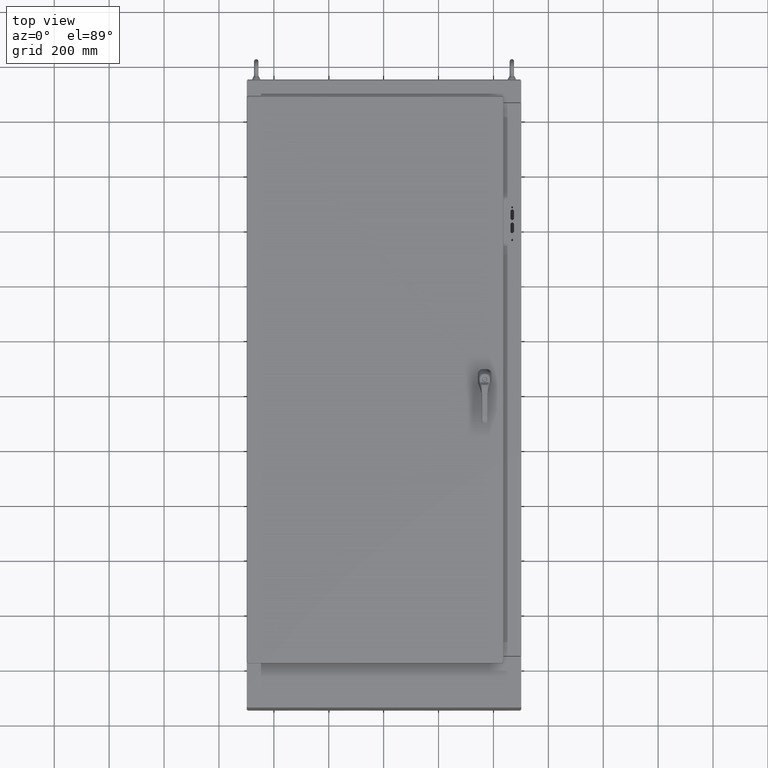
[diagram: clean part render]
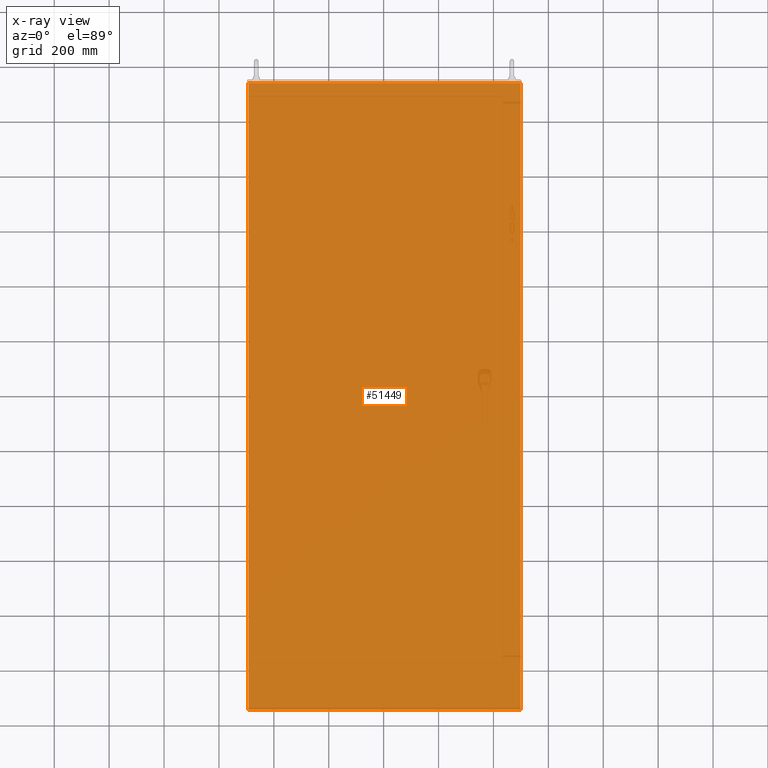
[diagram: x-ray — body ghosted, one internal face saturated and labeled with its STEP entity id]
A machine part, top view, then the same camera in x-ray: the body is ghosted and one INTERNAL B-rep face — a face not visible from any outside direction — is saturated and labeled: STEP entity #51449.
In plain terms, the highlighted planar face has unit normal (0, 0, 1).
Its self-contained STEP definition (entity closure, byte-faithful):
#3217=PLANE('',#56063);
#4462=FACE_OUTER_BOUND('',#7646,.T.);
#7646=EDGE_LOOP('',(#34216,#34217,#34218,#34219));
#11087=LINE('',#78090,#14742);
#11090=LINE('',#78096,#14745);
#11093=LINE('',#78103,#14748);
#11095=LINE('',#78106,#14750);
#14742=VECTOR('',#62306,0.393700787401575);
#14745=VECTOR('',#62311,0.393700787401575);
#14748=VECTOR('',#62318,0.393700787401575);
#14750=VECTOR('',#62322,0.393700787401575);
#21353=VERTEX_POINT('',#78081);
#21354=VERTEX_POINT('',#78085);
#21356=VERTEX_POINT('',#78094);
#21358=VERTEX_POINT('',#78102);
#26273=EDGE_CURVE('',#21353,#21354,#11087,.T.);
#26276=EDGE_CURVE('',#21356,#21354,#11090,.T.);
#26279=EDGE_CURVE('',#21353,#21358,#11093,.T.);
#26281=EDGE_CURVE('',#21358,#21356,#11095,.T.);
#34216=ORIENTED_EDGE('',*,*,#26273,.T.);
#34217=ORIENTED_EDGE('',*,*,#26276,.F.);
#34218=ORIENTED_EDGE('',*,*,#26281,.F.);
#34219=ORIENTED_EDGE('',*,*,#26279,.F.);
#51449=ADVANCED_FACE('',(#4462),#3217,.T.);
#56063=AXIS2_PLACEMENT_3D('',#78107,#62323,#62324);
#62306=DIRECTION('',(3.11110506968894E-16,-1.,0.));
#62311=DIRECTION('',(-1.,0.,0.));
#62318=DIRECTION('',(1.,0.,0.));
#62322=DIRECTION('',(1.86666304181337E-16,-1.,0.));
#62323=DIRECTION('center_axis',(0.,0.,1.));
#62324=DIRECTION('ref_axis',(1.,0.,0.));
#78081=CARTESIAN_POINT('',(-19.390875,44.9585,0.104));
#78085=CARTESIAN_POINT('',(-19.390875,-44.9585,0.104));
#78090=CARTESIAN_POINT('',(-19.390875,-22.47925,0.104));
#78094=CARTESIAN_POINT('',(19.6355,-44.9585,0.104));
#78096=CARTESIAN_POINT('',(-19.6355,-44.9585,0.104));
#78102=CARTESIAN_POINT('',(19.6355,44.9585,0.104));
#78103=CARTESIAN_POINT('',(19.6355,44.9585,0.104));
#78106=CARTESIAN_POINT('',(19.6355,-44.9585,0.104));
#78107=CARTESIAN_POINT('Origin',(-2.79741234551221E-15,-5.98348694974337E-15,
0.104));